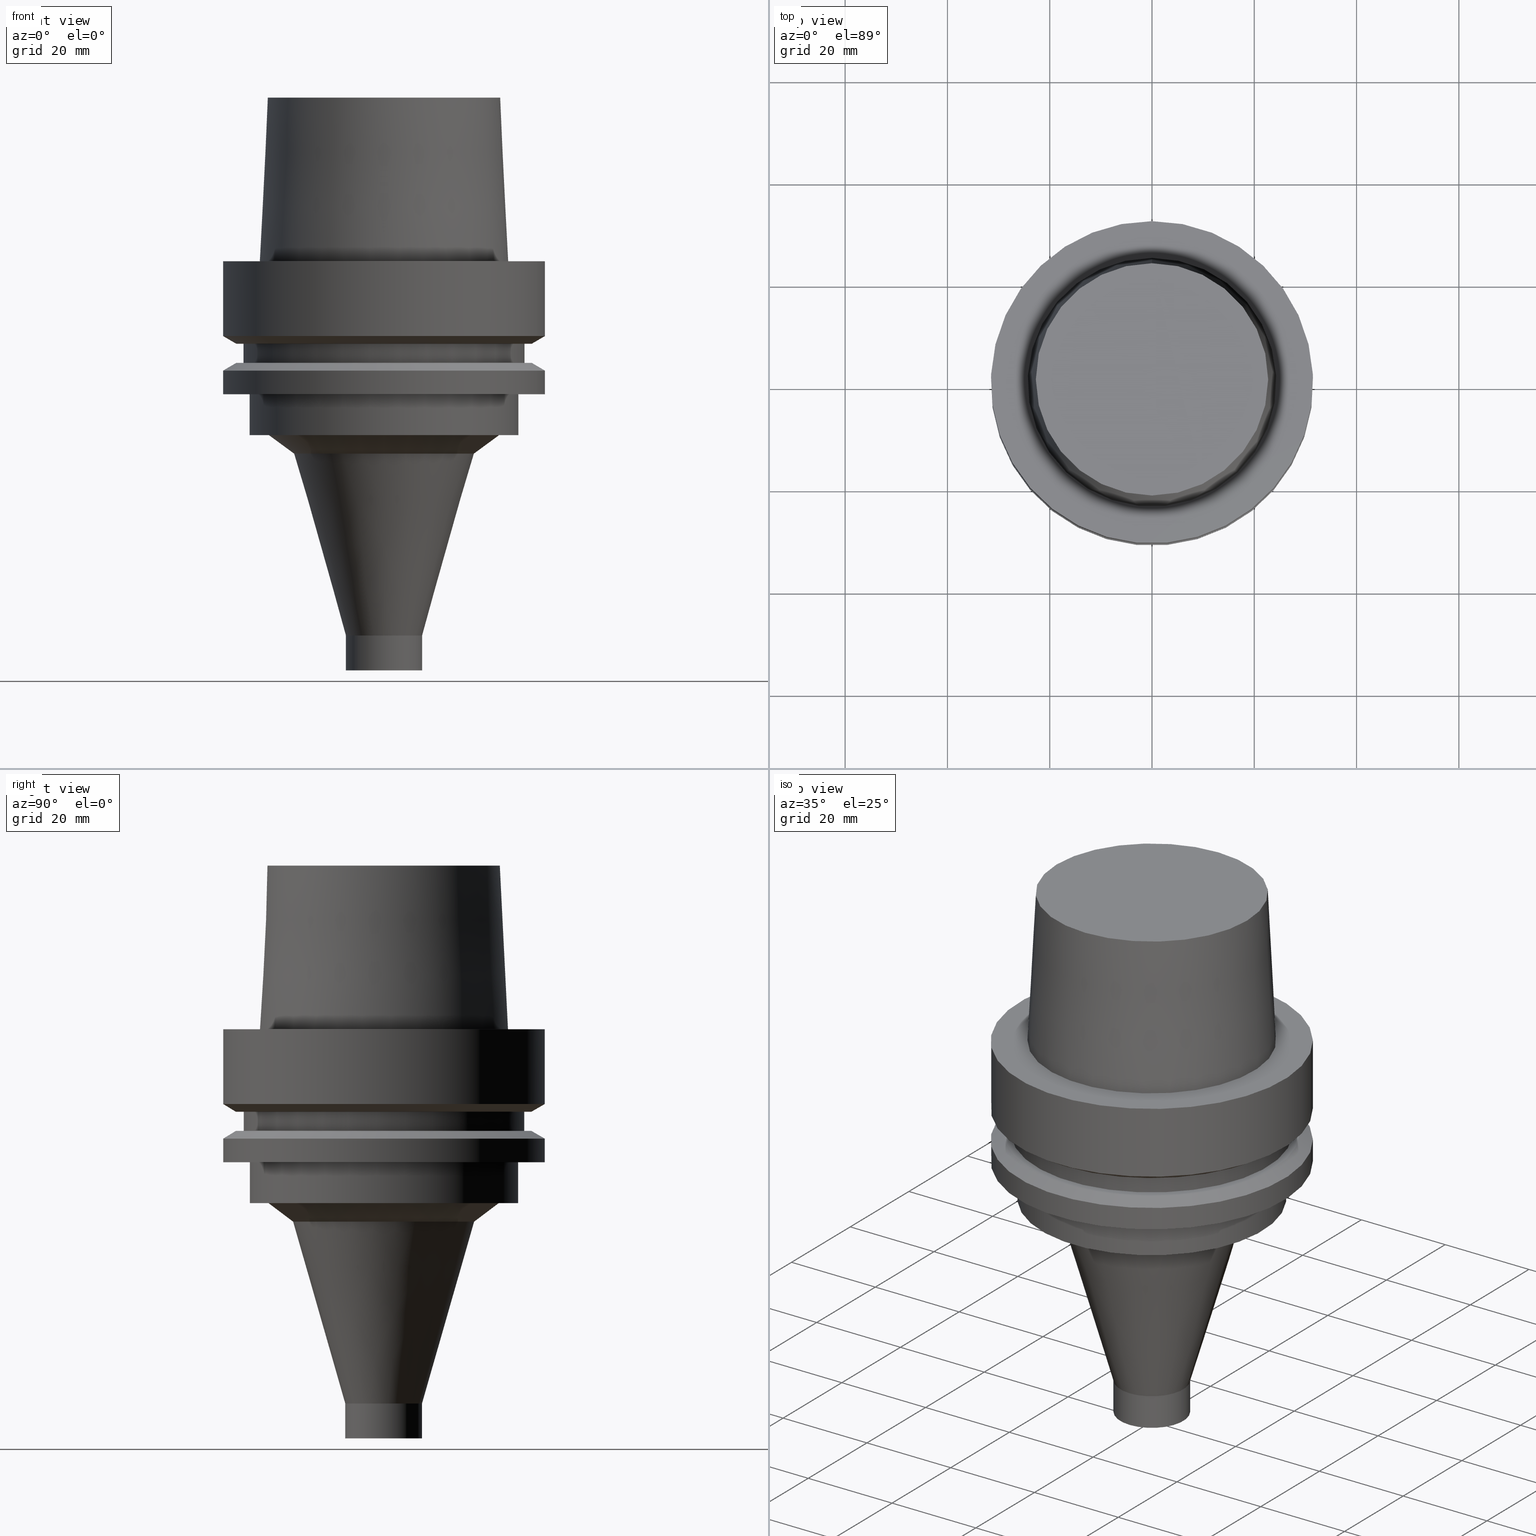
[diagram: canonical four-view strip — front | top / right | iso, engineering-drawing reading convention]
A machine part, canonical four-view strip (front | top / right | iso — engineering-drawing reading convention). The complete STEP part file that produces these views, byte-faithful:
ISO-10303-21;
HEADER;
FILE_DESCRIPTION((''),'1');
FILE_NAME('//Big_tech03/bigt/Translate/21_\X2\8F2A90ED7DDA\X0\-DXF/71_\X2\5207524A5DE55177\X0\/01_\X2\30A830F330C930DF30EB52A05DE5\X0\/11_\X2\30B330F330BF30AF30C830B030EA30C330D7\X0\ CG/01_\X2\30D930FC30B930DB30EB30C0\X0\/HSK/A 63/HSK-A63-CG15-80.stp','2012-05-31T06:37:12',(''),(''),'Spatial Interop R18','Kubotek KeyCreator V8.5.1 (14335)',' ');
FILE_SCHEMA(('CONFIG_CONTROL_DESIGN'));
ENDSEC;
DATA;
#1=DESIGN_CONTEXT('',#27,'design');
#2=APPLICATION_PROTOCOL_DEFINITION('INTERNATIONAL STANDARD','config_control_design',1994,#27);
#3=PRODUCT_CATEGORY_RELATIONSHIP('NONE','NONE',#28,#29);
#4=DATE_AND_TIME(#30,#31);
#5=DATE_TIME_ROLE('creation_date');
#6=DATE_TIME_ROLE('classification_date');
#7=PERSON_AND_ORGANIZATION_ROLE('creator');
#8=PERSON_AND_ORGANIZATION_ROLE('design_supplier');
#9=PERSON_AND_ORGANIZATION_ROLE('classification_officer');
#10=PERSON_AND_ORGANIZATION_ROLE('design_owner');
#11=APPROVAL_PERSON_ORGANIZATION(#32,#33,#34);
#12=APPROVAL_DATE_TIME(#4,#33);
#13=CC_DESIGN_APPROVAL(#33,(#35,#36,#37));
#14=CC_DESIGN_DATE_AND_TIME_ASSIGNMENT(#4,#5,(#37));
#15=CC_DESIGN_DATE_AND_TIME_ASSIGNMENT(#4,#6,(#35));
#16=CC_DESIGN_PERSON_AND_ORGANIZATION_ASSIGNMENT(#32,#10,(#38));
#17=CC_DESIGN_PERSON_AND_ORGANIZATION_ASSIGNMENT(#32,#7,(#37));
#18=CC_DESIGN_PERSON_AND_ORGANIZATION_ASSIGNMENT(#32,#7,(#36));
#19=CC_DESIGN_PERSON_AND_ORGANIZATION_ASSIGNMENT(#32,#8,(#36));
#20=CC_DESIGN_SECURITY_CLASSIFICATION(#35,(#36));
#21=CC_DESIGN_PERSON_AND_ORGANIZATION_ASSIGNMENT(#32,#9,(#35));
#22=SHAPE_DEFINITION_REPRESENTATION(#39,#40);
#23= (GEOMETRIC_REPRESENTATION_CONTEXT(3)GLOBAL_UNCERTAINTY_ASSIGNED_CONTEXT((#43))GLOBAL_UNIT_ASSIGNED_CONTEXT((#45,#46,#47))REPRESENTATION_CONTEXT('NONE','WORKSPACE'));
#27=APPLICATION_CONTEXT('CONFIGURATION CONTROLLED 3D DESIGNS OF MECHANICAL PARTS AND ASSEMBLIES');
#28=PRODUCT_CATEGORY('part','NONE');
#29=PRODUCT_RELATED_PRODUCT_CATEGORY('detail',' ',(#38));
#30=CALENDAR_DATE(2012,31,4);
#31=LOCAL_TIME(15,37,12.0,#49);
#32=PERSON_AND_ORGANIZATION(#50,#51);
#33=APPROVAL(#52,'SOLID MODEL');
#34=APPROVAL_ROLE('APPROVED');
#35=SECURITY_CLASSIFICATION('','',#53);
#36=PRODUCT_DEFINITION_FORMATION_WITH_SPECIFIED_SOURCE(' ','NONE',#38,.NOT_KNOWN.);
#37=PRODUCT_DEFINITION('NONE','NONE',#36,#1);
#38=PRODUCT('1','1','PART-1-DESC',(#54));
#39=PRODUCT_DEFINITION_SHAPE('NONE','NONE',#37);
#40=ADVANCED_BREP_SHAPE_REPRESENTATION('1',(#55,#56),#23);
#43=UNCERTAINTY_MEASURE_WITH_UNIT(LENGTH_MEASURE(1.0E-006),#45,'','');
#45= (CONVERSION_BASED_UNIT('MILLIMETRE',#59)LENGTH_UNIT()NAMED_UNIT(#62));
#46= (NAMED_UNIT(#64)PLANE_ANGLE_UNIT()SI_UNIT($,.RADIAN.));
#47= (NAMED_UNIT(#64)SOLID_ANGLE_UNIT()SI_UNIT($,.STERADIAN.));
#49=COORDINATED_UNIVERSAL_TIME_OFFSET(9,0,.AHEAD.);
#50=PERSON('','UNSPECIFIED',$,$,$,$);
#51=ORGANIZATION('UNSPECIFIED','UNSPECIFIED','UNSPECIFIED');
#52=APPROVAL_STATUS('approved');
#53=SECURITY_CLASSIFICATION_LEVEL('unclassified');
#54=MECHANICAL_CONTEXT('',#27,'mechanical');
#55=MANIFOLD_SOLID_BREP('1',#70);
#56=AXIS2_PLACEMENT_3D('',#71,#72,#73);
#59=LENGTH_MEASURE_WITH_UNIT(LENGTH_MEASURE(1.0),#74);
#62=DIMENSIONAL_EXPONENTS(1.0,0.0,0.0,0.0,0.0,0.0,0.0);
#64=DIMENSIONAL_EXPONENTS(0.0,0.0,0.0,0.0,0.0,0.0,0.0);
#70=CLOSED_SHELL('',(#75,#76,#77,#78,#79,#80,#81,#82,#83,#84,#85,#86,#87,#88,#89,#90,#91));
#71=CARTESIAN_POINT('',(0.0,0.0,0.0));
#72=DIRECTION('',(0.0,0.0,1.0));
#73=DIRECTION('',(1.0,0.0,0.0));
#74= (NAMED_UNIT(#62)LENGTH_UNIT()SI_UNIT(.MILLI.,.METRE.));
#75=ADVANCED_FACE('',(#93),#94,.T.);
#76=ADVANCED_FACE('',(#95),#96,.T.);
#77=ADVANCED_FACE('',(#97,#98),#99,.T.);
#78=ADVANCED_FACE('',(#100,#101),#102,.T.);
#79=ADVANCED_FACE('',(#103,#104),#105,.T.);
#80=ADVANCED_FACE('',(#106,#107),#108,.T.);
#81=ADVANCED_FACE('',(#109,#110),#111,.T.);
#82=ADVANCED_FACE('',(#112,#113),#114,.T.);
#83=ADVANCED_FACE('',(#115,#116),#117,.T.);
#84=ADVANCED_FACE('',(#118,#119),#120,.T.);
#85=ADVANCED_FACE('',(#121,#122),#123,.T.);
#86=ADVANCED_FACE('',(#124,#125),#126,.T.);
#87=ADVANCED_FACE('',(#127,#128),#129,.T.);
#88=ADVANCED_FACE('',(#130,#131),#132,.T.);
#89=ADVANCED_FACE('',(#133,#134),#135,.T.);
#90=ADVANCED_FACE('',(#136,#137),#138,.T.);
#91=ADVANCED_FACE('',(#139,#140),#141,.T.);
#93=FACE_OUTER_BOUND('',#142,.T.);
#94=PLANE('',#143);
#95=FACE_OUTER_BOUND('',#144,.T.);
#96=PLANE('',#145);
#97=FACE_BOUND('',#146,.T.);
#98=FACE_BOUND('',#147,.T.);
#99=CONICAL_SURFACE('',#148,23.5149999985447,0.0499583958256321);
#100=FACE_OUTER_BOUND('',#149,.T.);
#101=FACE_BOUND('',#150,.T.);
#102=PLANE('',#151);
#103=FACE_BOUND('',#152,.T.);
#104=FACE_BOUND('',#153,.T.);
#105=CYLINDRICAL_SURFACE('',#154,31.5);
#106=FACE_BOUND('',#155,.T.);
#107=FACE_BOUND('',#156,.T.);
#108=CONICAL_SURFACE('',#157,30.19879763,1.04719755326565);
#109=FACE_BOUND('',#158,.T.);
#110=FACE_OUTER_BOUND('',#159,.T.);
#111=PLANE('',#160);
#112=FACE_BOUND('',#161,.T.);
#113=FACE_BOUND('',#162,.T.);
#114=CYLINDRICAL_SURFACE('',#163,27.5);
#115=FACE_OUTER_BOUND('',#164,.T.);
#116=FACE_BOUND('',#165,.T.);
#117=PLANE('',#166);
#118=FACE_BOUND('',#167,.T.);
#119=FACE_BOUND('',#168,.T.);
#120=CONICAL_SURFACE('',#169,30.19879763,1.04719755326565);
#121=FACE_BOUND('',#170,.T.);
#122=FACE_BOUND('',#171,.T.);
#123=CYLINDRICAL_SURFACE('',#172,31.5);
#124=FACE_BOUND('',#173,.T.);
#125=FACE_OUTER_BOUND('',#174,.T.);
#126=PLANE('',#175);
#127=FACE_BOUND('',#176,.T.);
#128=FACE_BOUND('',#177,.T.);
#129=CYLINDRICAL_SURFACE('',#178,26.3);
#130=FACE_BOUND('',#179,.T.);
#131=FACE_OUTER_BOUND('',#180,.T.);
#132=PLANE('',#181);
#133=FACE_BOUND('',#182,.T.);
#134=FACE_BOUND('',#183,.T.);
#135=CONICAL_SURFACE('',#184,20.0968181953199,0.925004499727573);
#136=FACE_BOUND('',#185,.T.);
#137=FACE_BOUND('',#186,.T.);
#138=CONICAL_SURFACE('',#187,12.5968181953199,0.279212672722231);
#139=FACE_BOUND('',#188,.T.);
#140=FACE_BOUND('',#189,.T.);
#141=CYLINDRICAL_SURFACE('',#190,7.5);
#142=EDGE_LOOP('',(#191));
#143=AXIS2_PLACEMENT_3D('',#192,#193,#194);
#144=EDGE_LOOP('',(#195));
#145=AXIS2_PLACEMENT_3D('',#196,#197,#198);
#146=EDGE_LOOP('',(#199));
#147=EDGE_LOOP('',(#200));
#148=AXIS2_PLACEMENT_3D('',#201,#202,#203);
#149=EDGE_LOOP('',(#204));
#150=EDGE_LOOP('',(#205));
#151=AXIS2_PLACEMENT_3D('',#206,#207,#208);
#152=EDGE_LOOP('',(#209));
#153=EDGE_LOOP('',(#210));
#154=AXIS2_PLACEMENT_3D('',#211,#212,#213);
#155=EDGE_LOOP('',(#214));
#156=EDGE_LOOP('',(#215));
#157=AXIS2_PLACEMENT_3D('',#216,#217,#218);
#158=EDGE_LOOP('',(#219));
#159=EDGE_LOOP('',(#220));
#160=AXIS2_PLACEMENT_3D('',#221,#222,#223);
#161=EDGE_LOOP('',(#224));
#162=EDGE_LOOP('',(#225));
#163=AXIS2_PLACEMENT_3D('',#226,#227,#228);
#164=EDGE_LOOP('',(#229));
#165=EDGE_LOOP('',(#230));
#166=AXIS2_PLACEMENT_3D('',#231,#232,#233);
#167=EDGE_LOOP('',(#234));
#168=EDGE_LOOP('',(#235));
#169=AXIS2_PLACEMENT_3D('',#236,#237,#238);
#170=EDGE_LOOP('',(#239));
#171=EDGE_LOOP('',(#240));
#172=AXIS2_PLACEMENT_3D('',#241,#242,#243);
#173=EDGE_LOOP('',(#244));
#174=EDGE_LOOP('',(#245));
#175=AXIS2_PLACEMENT_3D('',#246,#247,#248);
#176=EDGE_LOOP('',(#249));
#177=EDGE_LOOP('',(#250));
#178=AXIS2_PLACEMENT_3D('',#251,#252,#253);
#179=EDGE_LOOP('',(#254));
#180=EDGE_LOOP('',(#255));
#181=AXIS2_PLACEMENT_3D('',#256,#257,#258);
#182=EDGE_LOOP('',(#259));
#183=EDGE_LOOP('',(#260));
#184=AXIS2_PLACEMENT_3D('',#261,#262,#263);
#185=EDGE_LOOP('',(#264));
#186=EDGE_LOOP('',(#265));
#187=AXIS2_PLACEMENT_3D('',#266,#267,#268);
#188=EDGE_LOOP('',(#269));
#189=EDGE_LOOP('',(#270));
#190=AXIS2_PLACEMENT_3D('',#271,#272,#273);
#191=ORIENTED_EDGE('',*,*,#274,.T.);
#192=CARTESIAN_POINT('',(4.89858719658941E-015,3.75000000000001,-80.0));
#193=DIRECTION('',(6.12323399573677E-017,1.22464679914735E-016,-1.0));
#194=DIRECTION('',(-1.23259516440783E-032,1.0,1.22464679914735E-016));
#195=ORIENTED_EDGE('',*,*,#275,.F.);
#196=CARTESIAN_POINT('',(-1.95943487863577E-015,11.3574999984407,32.0));
#197=DIRECTION('',(-6.12323399573677E-017,-1.22464679914735E-016,1.0));
#198=DIRECTION('',(1.23259516440783E-032,-1.0,-1.22464679914735E-016));
#199=ORIENTED_EDGE('',*,*,#276,.F.);
#200=ORIENTED_EDGE('',*,*,#275,.T.);
#201=CARTESIAN_POINT('',(-9.79717439317883E-016,-1.95943487863576E-015,16.0));
#202=DIRECTION('',(6.12323399573676E-017,1.22464679914735E-016,-1.0));
#203=DIRECTION('',(-1.23259516440783E-032,1.0,1.22464679914735E-016));
#204=ORIENTED_EDGE('',*,*,#277,.F.);
#205=ORIENTED_EDGE('',*,*,#276,.T.);
#206=CARTESIAN_POINT('',(-3.43986495508397E-031,27.907500000104,3.41768305473321E-015));
#207=DIRECTION('',(-6.12323399573677E-017,-1.22464679914735E-016,1.0));
#208=DIRECTION('',(1.23259516440783E-032,-1.0,-1.22464679914735E-016));
#209=ORIENTED_EDGE('',*,*,#278,.F.);
#210=ORIENTED_EDGE('',*,*,#277,.T.);
#211=CARTESIAN_POINT('',(4.47684973986342E-016,8.95369947972685E-016,-7.311250465));
#212=DIRECTION('',(-6.12323399573677E-017,-1.22464679914735E-016,1.0));
#213=DIRECTION('',(-1.23259516440783E-032,1.0,1.22464679914735E-016));
#214=ORIENTED_EDGE('',*,*,#279,.F.);
#215=ORIENTED_EDGE('',*,*,#278,.T.);
#216=CARTESIAN_POINT('',(9.41370714892619E-016,1.88274142978524E-015,-15.373750465));
#217=DIRECTION('',(-6.12323399573677E-017,-1.22464679914735E-016,1.0));
#218=DIRECTION('',(-1.23259516440783E-032,1.0,1.22464679914735E-016));
#219=ORIENTED_EDGE('',*,*,#280,.F.);
#220=ORIENTED_EDGE('',*,*,#279,.T.);
#221=CARTESIAN_POINT('',(9.87371481812553E-016,28.19879763,-16.125));
#222=DIRECTION('',(6.12323399573677E-017,1.22464679914735E-016,-1.0));
#223=DIRECTION('',(-1.23259516440783E-032,1.0,1.22464679914735E-016));
#224=ORIENTED_EDGE('',*,*,#281,.F.);
#225=ORIENTED_EDGE('',*,*,#280,.T.);
#226=CARTESIAN_POINT('',(1.10218211923262E-015,2.20436423846524E-015,-18.0));
#227=DIRECTION('',(-6.12323399573677E-017,-1.22464679914735E-016,1.0));
#228=DIRECTION('',(-1.23259516440783E-032,1.0,1.22464679914735E-016));
#229=ORIENTED_EDGE('',*,*,#282,.F.);
#230=ORIENTED_EDGE('',*,*,#281,.T.);
#231=CARTESIAN_POINT('',(1.21699275665268E-015,28.19879763,-19.875));
#232=DIRECTION('',(-6.12323399573677E-017,-1.22464679914735E-016,1.0));
#233=DIRECTION('',(1.23259516440783E-032,-1.0,-1.22464679914735E-016));
#234=ORIENTED_EDGE('',*,*,#283,.F.);
#235=ORIENTED_EDGE('',*,*,#282,.T.);
#236=CARTESIAN_POINT('',(1.26299352357262E-015,2.52598704714523E-015,-20.626249535));
#237=DIRECTION('',(6.12323399573677E-017,1.22464679914735E-016,-1.0));
#238=DIRECTION('',(-1.23259516440783E-032,1.0,1.22464679914735E-016));
#239=ORIENTED_EDGE('',*,*,#284,.F.);
#240=ORIENTED_EDGE('',*,*,#283,.T.);
#241=CARTESIAN_POINT('',(1.45051756469206E-015,2.90103512938411E-015,-23.688749535));
#242=DIRECTION('',(-6.12323399573677E-017,-1.22464679914735E-016,1.0));
#243=DIRECTION('',(-1.23259516440783E-032,1.0,1.22464679914735E-016));
#244=ORIENTED_EDGE('',*,*,#285,.F.);
#245=ORIENTED_EDGE('',*,*,#284,.T.);
#246=CARTESIAN_POINT('',(1.59204083889156E-015,28.9,-26.0));
#247=DIRECTION('',(6.12323399573677E-017,1.22464679914735E-016,-1.0));
#248=DIRECTION('',(-1.23259516440783E-032,1.0,1.22464679914735E-016));
#249=ORIENTED_EDGE('',*,*,#286,.F.);
#250=ORIENTED_EDGE('',*,*,#285,.T.);
#251=CARTESIAN_POINT('',(1.83697019872103E-015,3.67394039744206E-015,-30.0));
#252=DIRECTION('',(-6.12323399573677E-017,-1.22464679914735E-016,1.0));
#253=DIRECTION('',(-1.23259516440783E-032,1.0,1.22464679914735E-016));
#254=ORIENTED_EDGE('',*,*,#287,.F.);
#255=ORIENTED_EDGE('',*,*,#286,.T.);
#256=CARTESIAN_POINT('',(2.0818995585505E-015,24.4,-34.0));
#257=DIRECTION('',(6.12323399573677E-017,1.22464679914735E-016,-1.0));
#258=DIRECTION('',(-1.23259516440783E-032,1.0,1.22464679914735E-016));
#259=ORIENTED_EDGE('',*,*,#288,.F.);
#260=ORIENTED_EDGE('',*,*,#287,.T.);
#261=CARTESIAN_POINT('',(2.19279149484006E-015,4.38558298968012E-015,-35.8110027538841));
#262=DIRECTION('',(-6.12323399573677E-017,-1.22464679914735E-016,1.0));
#263=DIRECTION('',(-1.23259516440783E-032,1.0,1.22464679914735E-016));
#264=ORIENTED_EDGE('',*,*,#289,.F.);
#265=ORIENTED_EDGE('',*,*,#288,.T.);
#266=CARTESIAN_POINT('',(3.39223533320174E-015,6.78447066640348E-015,-55.3994071688841));
#267=DIRECTION('',(-6.12323399573677E-017,-1.22464679914735E-016,1.0));
#268=DIRECTION('',(-1.23259516440783E-032,1.0,1.22464679914735E-016));
#269=ORIENTED_EDGE('',*,*,#274,.F.);
#270=ORIENTED_EDGE('',*,*,#289,.T.);
#271=CARTESIAN_POINT('',(4.68968721593164E-015,9.37937443186327E-015,-76.588404415));
#272=DIRECTION('',(-6.12323399573677E-017,-1.22464679914735E-016,1.0));
#273=DIRECTION('',(-1.23259516440783E-032,1.0,1.22464679914735E-016));
#274=EDGE_CURVE('',#290,#290,#291,.T.);
#275=EDGE_CURVE('',#292,#292,#293,.T.);
#276=EDGE_CURVE('',#294,#294,#295,.T.);
#277=EDGE_CURVE('',#296,#296,#297,.T.);
#278=EDGE_CURVE('',#298,#298,#299,.T.);
#279=EDGE_CURVE('',#300,#300,#301,.T.);
#280=EDGE_CURVE('',#302,#302,#303,.T.);
#281=EDGE_CURVE('',#304,#304,#305,.T.);
#282=EDGE_CURVE('',#306,#306,#307,.T.);
#283=EDGE_CURVE('',#308,#308,#309,.T.);
#284=EDGE_CURVE('',#310,#310,#311,.T.);
#285=EDGE_CURVE('',#312,#312,#313,.T.);
#286=EDGE_CURVE('',#314,#314,#315,.T.);
#287=EDGE_CURVE('',#316,#316,#317,.T.);
#288=EDGE_CURVE('',#318,#318,#319,.T.);
#289=EDGE_CURVE('',#320,#320,#321,.T.);
#290=VERTEX_POINT('',#322);
#291=CIRCLE('',#323,7.5);
#292=VERTEX_POINT('',#324);
#293=CIRCLE('',#325,22.7149999968815);
#294=VERTEX_POINT('',#326);
#295=CIRCLE('',#327,24.3150000002079);
#296=VERTEX_POINT('',#328);
#297=CIRCLE('',#329,31.5);
#298=VERTEX_POINT('',#330);
#299=CIRCLE('',#331,31.5);
#300=VERTEX_POINT('',#332);
#301=CIRCLE('',#333,28.89759526);
#302=VERTEX_POINT('',#334);
#303=CIRCLE('',#335,27.5);
#304=VERTEX_POINT('',#336);
#305=CIRCLE('',#337,27.5);
#306=VERTEX_POINT('',#338);
#307=CIRCLE('',#339,28.89759526);
#308=VERTEX_POINT('',#340);
#309=CIRCLE('',#341,31.5);
#310=VERTEX_POINT('',#342);
#311=CIRCLE('',#343,31.5);
#312=VERTEX_POINT('',#344);
#313=CIRCLE('',#345,26.3);
#314=VERTEX_POINT('',#346);
#315=CIRCLE('',#347,26.3);
#316=VERTEX_POINT('',#348);
#317=CIRCLE('',#349,22.5);
#318=VERTEX_POINT('',#350);
#319=CIRCLE('',#351,17.6936363906399);
#320=VERTEX_POINT('',#352);
#321=CIRCLE('',#353,7.5);
#322=CARTESIAN_POINT('',(4.89858719658941E-015,7.50000000000001,-80.0));
#323=AXIS2_PLACEMENT_3D('',#354,#355,#356);
#324=CARTESIAN_POINT('',(-1.95943487863577E-015,22.7149999968815,32.0));
#325=AXIS2_PLACEMENT_3D('',#357,#358,#359);
#326=CARTESIAN_POINT('',(-2.99705514228327E-031,24.3150000002079,2.97772869215225E-015));
#327=AXIS2_PLACEMENT_3D('',#360,#361,#362);
#328=CARTESIAN_POINT('',(-3.88267476788467E-031,31.5,3.85763741731416E-015));
#329=AXIS2_PLACEMENT_3D('',#363,#364,#365);
#330=CARTESIAN_POINT('',(8.95369947972684E-016,31.5,-14.62250093));
#331=AXIS2_PLACEMENT_3D('',#366,#367,#368);
#332=CARTESIAN_POINT('',(9.87371481812553E-016,28.89759526,-16.125));
#333=AXIS2_PLACEMENT_3D('',#369,#370,#371);
#334=CARTESIAN_POINT('',(9.87371481812553E-016,27.5,-16.125));
#335=AXIS2_PLACEMENT_3D('',#372,#373,#374);
#336=CARTESIAN_POINT('',(1.21699275665268E-015,27.5,-19.875));
#337=AXIS2_PLACEMENT_3D('',#375,#376,#377);
#338=CARTESIAN_POINT('',(1.21699275665268E-015,28.89759526,-19.875));
#339=AXIS2_PLACEMENT_3D('',#378,#379,#380);
#340=CARTESIAN_POINT('',(1.30899429049255E-015,31.5,-21.37749907));
#341=AXIS2_PLACEMENT_3D('',#381,#382,#383);
#342=CARTESIAN_POINT('',(1.59204083889156E-015,31.5,-26.0));
#343=AXIS2_PLACEMENT_3D('',#384,#385,#386);
#344=CARTESIAN_POINT('',(1.59204083889156E-015,26.3,-26.0));
#345=AXIS2_PLACEMENT_3D('',#387,#388,#389);
#346=CARTESIAN_POINT('',(2.0818995585505E-015,26.3,-34.0));
#347=AXIS2_PLACEMENT_3D('',#390,#391,#392);
#348=CARTESIAN_POINT('',(2.0818995585505E-015,22.5,-34.0));
#349=AXIS2_PLACEMENT_3D('',#393,#394,#395);
#350=CARTESIAN_POINT('',(2.30368343112962E-015,17.6936363906399,-37.6220055077681));
#351=AXIS2_PLACEMENT_3D('',#396,#397,#398);
#352=CARTESIAN_POINT('',(4.48078723527386E-015,7.50000000000001,-73.17680883));
#353=AXIS2_PLACEMENT_3D('',#399,#400,#401);
#354=CARTESIAN_POINT('',(4.89858719658941E-015,9.79717439317882E-015,-80.0));
#355=DIRECTION('',(6.12323399573677E-017,1.22464679914735E-016,-1.0));
#356=DIRECTION('',(-1.23259516440783E-032,1.0,1.22464679914735E-016));
#357=CARTESIAN_POINT('',(-1.95943487863577E-015,-3.91886975727153E-015,32.0));
#358=DIRECTION('',(6.12323399573677E-017,1.22464679914735E-016,-1.0));
#359=DIRECTION('',(-1.23259516440783E-032,1.0,1.22464679914735E-016));
#360=CARTESIAN_POINT('',(0.0,0.0,0.0));
#361=DIRECTION('',(6.12323399573677E-017,1.22464679914735E-016,-1.0));
#362=DIRECTION('',(-1.23259516440783E-032,1.0,1.22464679914735E-016));
#363=CARTESIAN_POINT('',(0.0,0.0,0.0));
#364=DIRECTION('',(6.12323399573677E-017,1.22464679914735E-016,-1.0));
#365=DIRECTION('',(-1.23259516440783E-032,1.0,1.22464679914735E-016));
#366=CARTESIAN_POINT('',(8.95369947972685E-016,1.79073989594537E-015,-14.62250093));
#367=DIRECTION('',(6.12323399573677E-017,1.22464679914735E-016,-1.0));
#368=DIRECTION('',(-1.23259516440783E-032,1.0,1.22464679914735E-016));
#369=CARTESIAN_POINT('',(9.87371481812554E-016,1.97474296362511E-015,-16.125));
#370=DIRECTION('',(6.12323399573677E-017,1.22464679914735E-016,-1.0));
#371=DIRECTION('',(-1.23259516440783E-032,1.0,1.22464679914735E-016));
#372=CARTESIAN_POINT('',(9.87371481812554E-016,1.97474296362511E-015,-16.125));
#373=DIRECTION('',(6.12323399573677E-017,1.22464679914735E-016,-1.0));
#374=DIRECTION('',(-1.23259516440783E-032,1.0,1.22464679914735E-016));
#375=CARTESIAN_POINT('',(1.21699275665268E-015,2.43398551330536E-015,-19.875));
#376=DIRECTION('',(6.12323399573677E-017,1.22464679914735E-016,-1.0));
#377=DIRECTION('',(-1.23259516440783E-032,1.0,1.22464679914735E-016));
#378=CARTESIAN_POINT('',(1.21699275665268E-015,2.43398551330536E-015,-19.875));
#379=DIRECTION('',(6.12323399573677E-017,1.22464679914735E-016,-1.0));
#380=DIRECTION('',(-1.23259516440783E-032,1.0,1.22464679914735E-016));
#381=CARTESIAN_POINT('',(1.30899429049255E-015,2.6179885809851E-015,-21.37749907));
#382=DIRECTION('',(6.12323399573677E-017,1.22464679914735E-016,-1.0));
#383=DIRECTION('',(-1.23259516440783E-032,1.0,1.22464679914735E-016));
#384=CARTESIAN_POINT('',(1.59204083889156E-015,3.18408167778312E-015,-26.0));
#385=DIRECTION('',(6.12323399573677E-017,1.22464679914735E-016,-1.0));
#386=DIRECTION('',(-1.23259516440783E-032,1.0,1.22464679914735E-016));
#387=CARTESIAN_POINT('',(1.59204083889156E-015,3.18408167778312E-015,-26.0));
#388=DIRECTION('',(6.12323399573677E-017,1.22464679914735E-016,-1.0));
#389=DIRECTION('',(-1.23259516440783E-032,1.0,1.22464679914735E-016));
#390=CARTESIAN_POINT('',(2.0818995585505E-015,4.163799117101E-015,-34.0));
#391=DIRECTION('',(6.12323399573677E-017,1.22464679914735E-016,-1.0));
#392=DIRECTION('',(-1.23259516440783E-032,1.0,1.22464679914735E-016));
#393=CARTESIAN_POINT('',(2.0818995585505E-015,4.163799117101E-015,-34.0));
#394=DIRECTION('',(6.12323399573677E-017,1.22464679914735E-016,-1.0));
#395=DIRECTION('',(-1.23259516440783E-032,1.0,1.22464679914735E-016));
#396=CARTESIAN_POINT('',(2.30368343112962E-015,4.60736686225923E-015,-37.6220055077681));
#397=DIRECTION('',(6.12323399573677E-017,1.22464679914735E-016,-1.0));
#398=DIRECTION('',(-1.23259516440783E-032,1.0,1.22464679914735E-016));
#399=CARTESIAN_POINT('',(4.48078723527386E-015,8.96157447054773E-015,-73.17680883));
#400=DIRECTION('',(6.12323399573677E-017,1.22464679914735E-016,-1.0));
#401=DIRECTION('',(-1.23259516440783E-032,1.0,1.22464679914735E-016));
ENDSEC;
END-ISO-10303-21;
